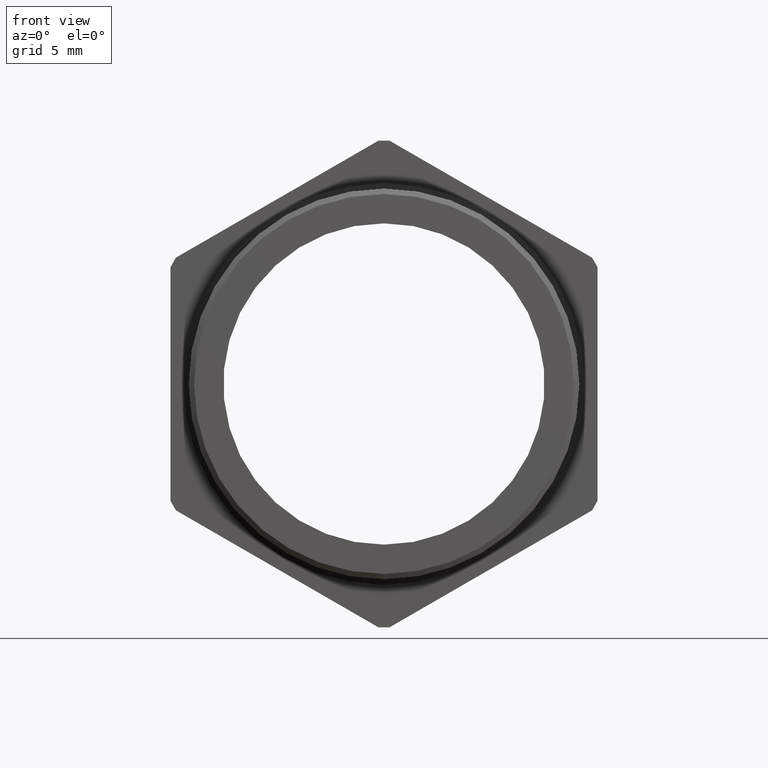
[diagram: clean part render]
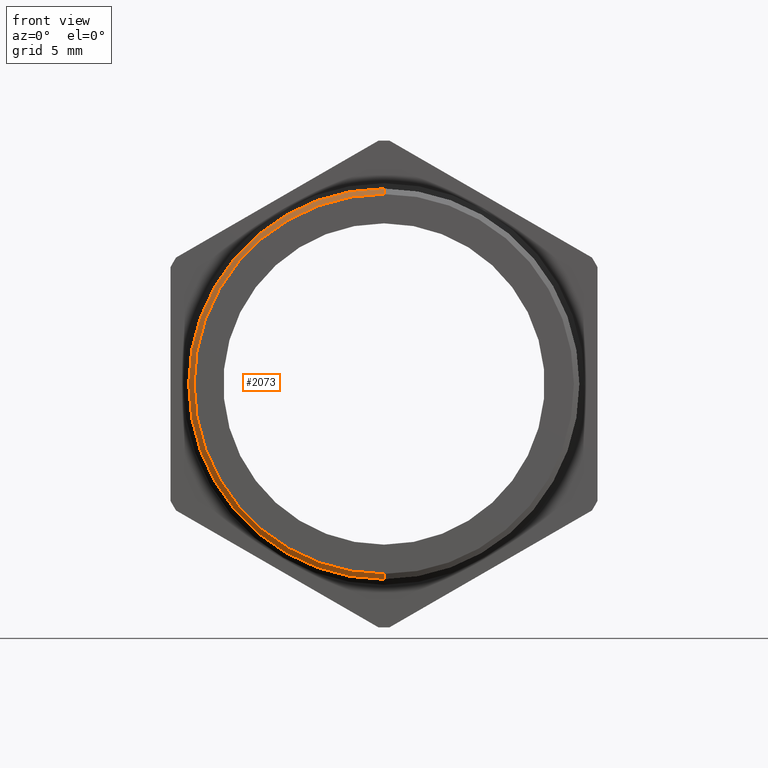
[diagram: same view with one face highlighted and labeled with its STEP entity id]
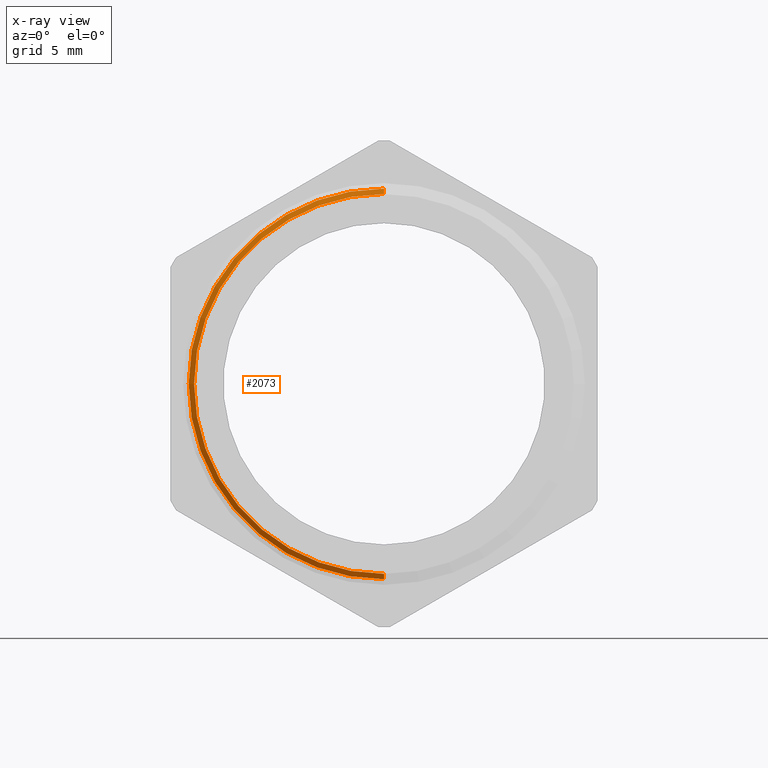
[diagram: x-ray of the same camera — body ghosted, the highlighted face saturated]
A machine part, front view. The second image highlights one B-rep face of the part: STEP entity #2073.
The next image is the same camera in x-ray: the body ghosted, the highlighted face saturated — about 0% of this face is hidden behind the body in this view.
In plain terms, the highlighted conical surface has half-angle 56.5 deg.
Its self-contained STEP definition (entity closure, byte-faithful):
#505 = DIRECTION ( 'NONE',  ( 0.0000000000000000000, 0.0000000000000000000, 1.000000000000000000 ) ) ;
#506 = DIRECTION ( 'NONE',  ( 0.0000000000000000000, 1.000000000000000000, 0.0000000000000000000 ) ) ;
#507 = AXIS2_PLACEMENT_3D ( 'NONE', #514, #506, #505 ) ;
#509 = CONICAL_SURFACE ( 'NONE', #507, 0.5041006689245971500, 0.9861110273767950100 ) ;
#510 = FACE_OUTER_BOUND ( 'NONE', #2074, .T. ) ;
#514 = CARTESIAN_POINT ( 'NONE',  ( 0.0000000000000000000, -0.01368953231332835400, 0.0000000000000000000 ) ) ;
#760 = CARTESIAN_POINT ( 'NONE',  ( 6.518496127155580900E-017, 0.0000000000000000000, -0.5247832961277019100 ) ) ;
#813 = DIRECTION ( 'NONE',  ( 1.021215602848916000E-016, 0.5519369853120591500, -0.8338858220671676600 ) ) ;
#814 = VECTOR ( 'NONE', #813, 39.37007874015748100 ) ;
#815 = CARTESIAN_POINT ( 'NONE',  ( 6.173452706465475200E-017, -0.01368953231332835400, -0.5041006689245971500 ) ) ;
#816 = LINE ( 'NONE', #815, #814 ) ;
#817 = CARTESIAN_POINT ( 'NONE',  ( 0.0000000000000000000, 0.0000000000000000000, 0.5247832961277019100 ) ) ;
#847 = CARTESIAN_POINT ( 'NONE',  ( 0.0000000000000000000, 0.009918098653296340800, -0.5397679086268463200 ) ) ;
#895 = DIRECTION ( 'NONE',  ( 0.0000000000000000000, 0.5519369853120591500, 0.8338858220671676600 ) ) ;
#896 = VECTOR ( 'NONE', #895, 39.37007874015748100 ) ;
#897 = CARTESIAN_POINT ( 'NONE',  ( 0.0000000000000000000, -0.01368953231332835400, 0.5041006689245971500 ) ) ;
#898 = LINE ( 'NONE', #897, #896 ) ;
#899 = CARTESIAN_POINT ( 'NONE',  ( 6.610250415823282900E-017, 0.009918098653296340800, 0.5397679086268463200 ) ) ;
#1410 = DIRECTION ( 'NONE',  ( 0.0000000000000000000, 0.0000000000000000000, 1.000000000000000000 ) ) ;
#1411 = DIRECTION ( 'NONE',  ( 0.0000000000000000000, 1.000000000000000000, 0.0000000000000000000 ) ) ;
#1412 = CARTESIAN_POINT ( 'NONE',  ( 0.0000000000000000000, 0.009918098653296340800, 0.0000000000000000000 ) ) ;
#1413 = AXIS2_PLACEMENT_3D ( 'NONE', #1412, #1411, #1410 ) ;
#1418 = CIRCLE ( 'NONE', #1413, 0.5397679086268463200 ) ;
#1486 = DIRECTION ( 'NONE',  ( 0.0000000000000000000, 0.0000000000000000000, -1.000000000000000000 ) ) ;
#1487 = DIRECTION ( 'NONE',  ( 0.0000000000000000000, -1.000000000000000000, 0.0000000000000000000 ) ) ;
#1488 = AXIS2_PLACEMENT_3D ( 'NONE', #1495, #1487, #1486 ) ;
#1489 = CIRCLE ( 'NONE', #1488, 0.5247832961277019100 ) ;
#1495 = CARTESIAN_POINT ( 'NONE',  ( 0.0000000000000000000, 0.0000000000000000000, 0.0000000000000000000 ) ) ;
#2073 = ADVANCED_FACE ( 'NONE', ( #510 ), #509, .T. ) ;
#2074 = EDGE_LOOP ( 'NONE', ( #2136, #2137, #2128, #2129 ) ) ;
#2128 = ORIENTED_EDGE ( 'NONE', *, *, #2334, .T. ) ;
#2129 = ORIENTED_EDGE ( 'NONE', *, *, #2613, .F. ) ;
#2136 = ORIENTED_EDGE ( 'NONE', *, *, #2308, .F. ) ;
#2137 = ORIENTED_EDGE ( 'NONE', *, *, #2638, .F. ) ;
#2272 = VERTEX_POINT ( 'NONE', #760 ) ;
#2307 = VERTEX_POINT ( 'NONE', #817 ) ;
#2308 = EDGE_CURVE ( 'NONE', #2272, #2324, #816, .T. ) ;
#2324 = VERTEX_POINT ( 'NONE', #847 ) ;
#2332 = VERTEX_POINT ( 'NONE', #899 ) ;
#2334 = EDGE_CURVE ( 'NONE', #2307, #2332, #898, .T. ) ;
#2613 = EDGE_CURVE ( 'NONE', #2324, #2332, #1418, .T. ) ;
#2638 = EDGE_CURVE ( 'NONE', #2307, #2272, #1489, .T. ) ;